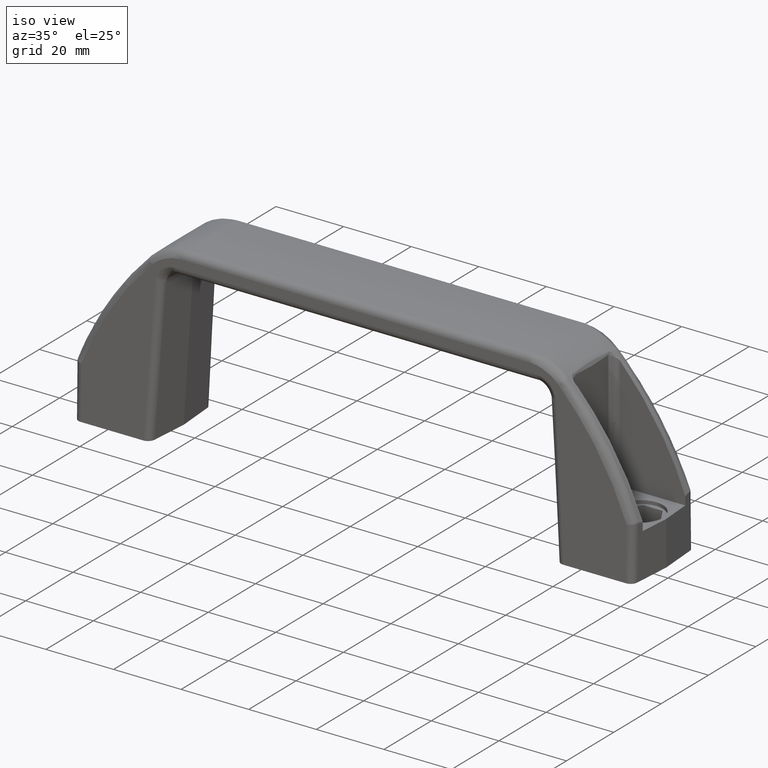
[diagram: clean part render]
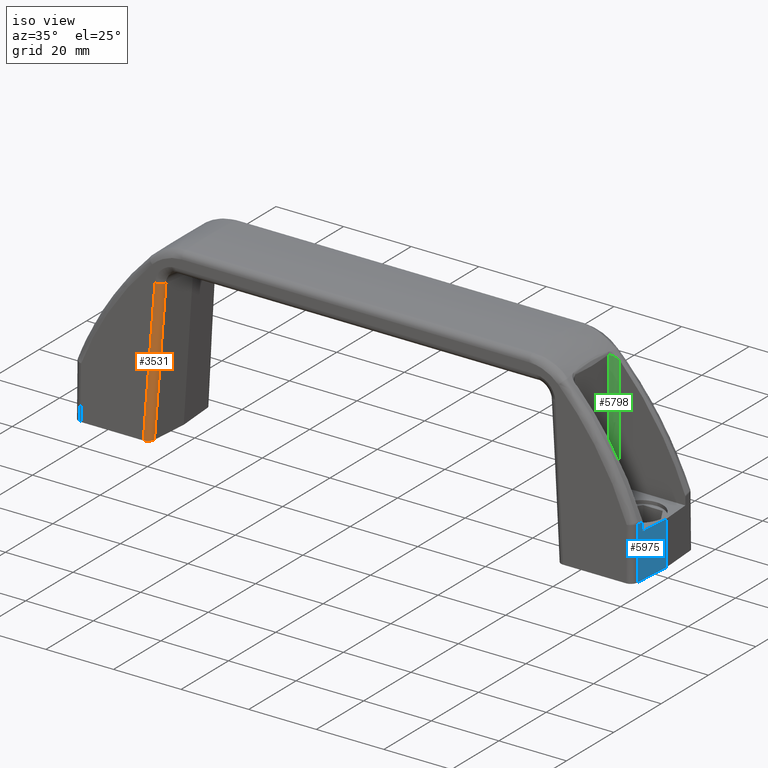
[diagram: same view with three faces highlighted in distinct colors, each labeled with its STEP entity id]
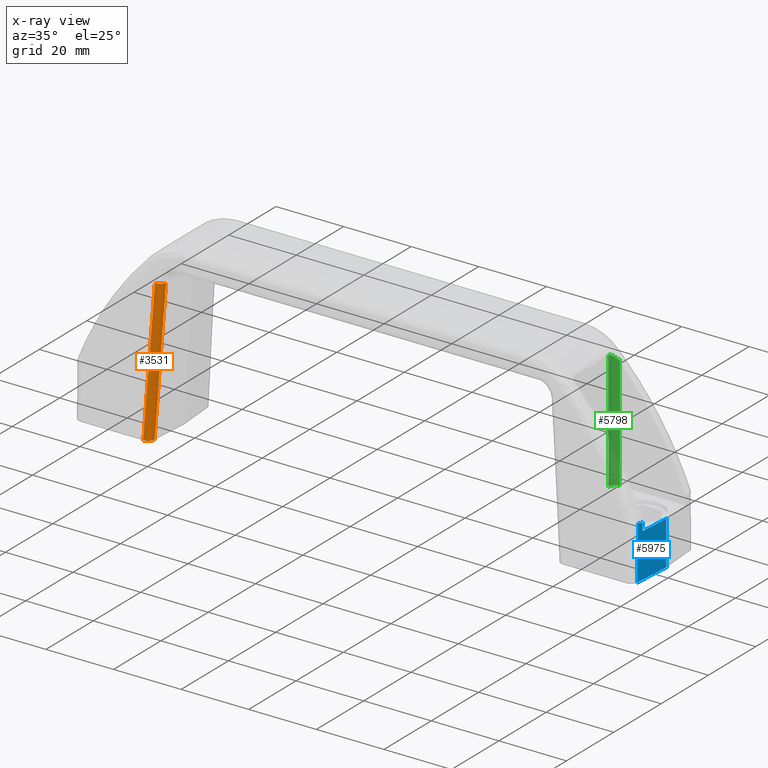
[diagram: x-ray of the same camera — body ghosted, the three highlighted faces saturated]
A machine part, iso view with three faces highlighted in distinct colors.
The next image is the same camera in x-ray (body ghosted, the three faces saturated) — at least one of them is partly hidden behind the body in this view.
Their STEP definitions:

[orange] entity #3531 — the highlighted face is a freeform B-spline surface patch.
#3394=CARTESIAN_POINT('',(16.760145770931299,-12.203539586289100,42.610632133530650));
#3395=VERTEX_POINT('',#3394);
#3396=CARTESIAN_POINT('',(18.749934323990999,-10.357281912817299,42.442060634858542));
#3397=VERTEX_POINT('',#3396);
#3398=CARTESIAN_POINT('',(16.760145770931299,-12.203539586289089,42.610632133530650));
#3399=CARTESIAN_POINT('',(18.610324945346996,-12.205868787984103,42.486019842847661));
#3400=CARTESIAN_POINT('',(18.749934323991042,-10.357281912817310,42.442060634858507));
#3408=(BOUNDED_CURVE()B_SPLINE_CURVE(2,(#3398,#3399,#3400),.UNSPECIFIED.,.F.,.U.)CURVE()GEOMETRIC_REPRESENTATION_ITEM()QUASI_UNIFORM_CURVE()RATIONAL_B_SPLINE_CURVE((1.0,0.733299809384538,1.0))REPRESENTATION_ITEM(''));
#3409=EDGE_CURVE('',#3395,#3397,#3408,.T.);
#3487=CARTESIAN_POINT('',(15.810530271523890,-11.121410714318230,-1.235033430990206));
#3488=CARTESIAN_POINT('',(18.826760613534880,-10.284629492163219,43.532761954300383));
#3489=CARTESIAN_POINT('',(15.712095268766312,-13.118503098395820,-1.191072542789208));
#3490=CARTESIAN_POINT('',(18.728325610777301,-12.281721876240805,43.576722842501376));
#3491=CARTESIAN_POINT('',(13.719047019870290,-13.017353178390890,-1.058681564034945));
#3492=CARTESIAN_POINT('',(16.735277361881280,-12.180571956235870,43.709113821255649));
#3500=(BOUNDED_SURFACE()B_SPLINE_SURFACE(1,2,((#3487,#3489,#3491),(#3488,#3490,#3492)),.UNSPECIFIED.,.F.,.F.,.U.)B_SPLINE_SURFACE_WITH_KNOTS((2,2),(3,3),(0.0,44.877091616425702),(0.0,3.313708498984759),.UNSPECIFIED.)GEOMETRIC_REPRESENTATION_ITEM()RATIONAL_B_SPLINE_SURFACE(((1.0,0.707106781186548,1.0),(1.0,0.707106781186548,1.0)))REPRESENTATION_ITEM('')SURFACE());
#3501=CARTESIAN_POINT('',(15.890400367436349,-11.150591457394199,9.947598E-014));
#3502=VERTEX_POINT('',#3501);
#3503=CARTESIAN_POINT('',(13.889254309171861,-13.0,9.237056E-014));
#3504=VERTEX_POINT('',#3503);
#3505=CARTESIAN_POINT('',(15.890400367436341,-11.150591457394199,9.714451E-014));
#3506=CARTESIAN_POINT('',(15.747829237028363,-13.000000000000002,9.714451E-014));
#3507=CARTESIAN_POINT('',(13.889254309171861,-12.999999999999989,9.714451E-014));
#3515=(BOUNDED_CURVE()B_SPLINE_CURVE(2,(#3505,#3506,#3507),.UNSPECIFIED.,.F.,.U.)CURVE()GEOMETRIC_REPRESENTATION_ITEM()QUASI_UNIFORM_CURVE()RATIONAL_B_SPLINE_CURVE((1.0,0.733299809384546,1.0))REPRESENTATION_ITEM(''));
#3516=EDGE_CURVE('',#3502,#3504,#3515,.T.);
#3517=ORIENTED_EDGE('',*,*,#3516,.F.);
#3518=CARTESIAN_POINT('',(18.749934323990999,-10.357281912817299,42.442060634858542));
#3519=CARTESIAN_POINT('',(15.890400367436349,-11.150591457394199,9.947598E-014));
#3520=QUASI_UNIFORM_CURVE('',1,(#3518,#3519),.UNSPECIFIED.,.F.,.U.);
#3521=EDGE_CURVE('',#3397,#3502,#3520,.T.);
#3522=ORIENTED_EDGE('',*,*,#3521,.F.);
#3523=ORIENTED_EDGE('',*,*,#3409,.F.);
#3524=CARTESIAN_POINT('',(13.889254309171861,-13.0,9.237056E-014));
#3525=CARTESIAN_POINT('',(16.760145770931299,-12.203539586289100,42.610632133530650));
#3526=QUASI_UNIFORM_CURVE('',1,(#3524,#3525),.UNSPECIFIED.,.F.,.U.);
#3527=EDGE_CURVE('',#3504,#3395,#3526,.T.);
#3528=ORIENTED_EDGE('',*,*,#3527,.F.);
#3529=EDGE_LOOP('',(#3517,#3522,#3523,#3528));
#3530=FACE_OUTER_BOUND('',#3529,.T.);
#3531=ADVANCED_FACE('',(#3530),#3500,.T.);

[blue] entity #5975 — the highlighted face is a freeform B-spline surface patch.
#2072=CARTESIAN_POINT('',(158.729626833435990,-10.785277463857820,15.637074237740000));
#2073=VERTEX_POINT('',#2072);
#2098=CARTESIAN_POINT('',(158.725021876438490,-10.849746861825160,15.643287284518699));
#2099=VERTEX_POINT('',#2098);
#2113=CARTESIAN_POINT('',(158.729626833435990,-10.785277463857820,15.637074237740000));
#2114=CARTESIAN_POINT('',(158.728104988807100,-10.806583288662390,15.641063996365030));
#2115=CARTESIAN_POINT('',(158.726570217936110,-10.828070080857440,15.643166374526780));
#2116=CARTESIAN_POINT('',(158.725021876438490,-10.849746861825160,15.643287284518699));
#2117=QUASI_UNIFORM_CURVE('',3,(#2113,#2114,#2115,#2116),.UNSPECIFIED.,.F.,.U.);
#2118=EDGE_CURVE('',#2073,#2099,#2117,.T.);
#2263=CARTESIAN_POINT('',(158.857146621103510,-9.000000436509680,15.300788244985601));
#2264=VERTEX_POINT('',#2263);
#2288=CARTESIAN_POINT('',(158.857146621103510,-9.000000436509680,15.300788244985601));
#2289=CARTESIAN_POINT('',(158.793715385305550,-9.888037737684430,15.469055868629624));
#2290=CARTESIAN_POINT('',(158.729626833436210,-10.785277463857710,15.637074237740141));
#2298=(BOUNDED_CURVE()B_SPLINE_CURVE(2,(#2288,#2289,#2290),.UNSPECIFIED.,.F.,.U.)CURVE()GEOMETRIC_REPRESENTATION_ITEM()QUASI_UNIFORM_CURVE()RATIONAL_B_SPLINE_CURVE((1.0,0.999998089719553,1.0))REPRESENTATION_ITEM(''));
#2299=EDGE_CURVE('',#2264,#2073,#2298,.T.);
#4127=CARTESIAN_POINT('',(158.704136312641000,-11.142144754994700,0.0));
#4128=VERTEX_POINT('',#4127);
#4129=CARTESIAN_POINT('',(158.725021876438490,-10.849746861825160,15.643287284518699));
#4130=CARTESIAN_POINT('',(158.704136312641000,-11.142144754994700,0.0));
#4131=QUASI_UNIFORM_CURVE('',1,(#4129,#4130),.UNSPECIFIED.,.F.,.U.);
#4132=EDGE_CURVE('',#2099,#4128,#4131,.T.);
#5925=CARTESIAN_POINT('',(159.500003795139010,0.0,13.000000617466860));
#5926=VERTEX_POINT('',#5925);
#5932=CARTESIAN_POINT('',(159.500003795139010,0.0,0.0));
#5933=VERTEX_POINT('',#5932);
#5934=CARTESIAN_POINT('',(159.500003795139010,0.0,13.000000617466860));
#5935=CARTESIAN_POINT('',(159.500003795139010,0.0,0.0));
#5936=QUASI_UNIFORM_CURVE('',1,(#5934,#5935),.UNSPECIFIED.,.F.,.U.);
#5937=EDGE_CURVE('',#5926,#5933,#5936,.T.);
#5947=CARTESIAN_POINT('',(159.539757362248390,0.556549939534964,-0.781382169541984));
#5948=CARTESIAN_POINT('',(158.664382653028300,-11.698695989570620,-0.781382169541984));
#5949=CARTESIAN_POINT('',(159.539757362248390,0.556549939534964,16.424669873646351));
#5950=CARTESIAN_POINT('',(158.664382653028300,-11.698695989570620,16.424669873646351));
#5951=B_SPLINE_SURFACE_WITH_KNOTS('',1,1,((#5947,#5949),(#5948,#5950)),.UNSPECIFIED.,.F.,.F.,.U.,(2,2),(2,2),(0.0,12.286469536217510),(0.0,17.206052043188340),.UNSPECIFIED.);
#5952=ORIENTED_EDGE('',*,*,#2299,.T.);
#5953=ORIENTED_EDGE('',*,*,#2118,.T.);
#5954=ORIENTED_EDGE('',*,*,#4132,.T.);
#5955=CARTESIAN_POINT('',(158.704136312641000,-11.142144754994700,0.0));
#5956=CARTESIAN_POINT('',(159.500003795139010,0.0,0.0));
#5957=QUASI_UNIFORM_CURVE('',1,(#5955,#5956),.UNSPECIFIED.,.F.,.U.);
#5958=EDGE_CURVE('',#4128,#5933,#5957,.T.);
#5959=ORIENTED_EDGE('',*,*,#5958,.T.);
#5960=ORIENTED_EDGE('',*,*,#5937,.F.);
#5961=CARTESIAN_POINT('',(158.857146621103510,-9.000000436509680,13.000000617466201));
#5962=VERTEX_POINT('',#5961);
#5963=CARTESIAN_POINT('',(158.857146621103510,-9.000000436509680,13.000000617466201));
#5964=CARTESIAN_POINT('',(159.500003795139010,0.0,13.000000617466860));
#5965=QUASI_UNIFORM_CURVE('',1,(#5963,#5964),.UNSPECIFIED.,.F.,.U.);
#5966=EDGE_CURVE('',#5962,#5926,#5965,.T.);
#5967=ORIENTED_EDGE('',*,*,#5966,.F.);
#5968=CARTESIAN_POINT('',(158.857146621103510,-9.000000436509680,15.300788244985601));
#5969=CARTESIAN_POINT('',(158.857146621103510,-9.000000436509680,13.000000617466201));
#5970=QUASI_UNIFORM_CURVE('',1,(#5968,#5969),.UNSPECIFIED.,.F.,.U.);
#5971=EDGE_CURVE('',#2264,#5962,#5970,.T.);
#5972=ORIENTED_EDGE('',*,*,#5971,.F.);
#5973=EDGE_LOOP('',(#5952,#5953,#5954,#5959,#5960,#5967,#5972));
#5974=FACE_OUTER_BOUND('',#5973,.T.);
#5975=ADVANCED_FACE('',(#5974),#5951,.F.);

[green] entity #5798 — the highlighted face is a freeform B-spline surface patch.
#888=CARTESIAN_POINT('',(137.482387620717990,7.000000432000820,48.245700473842099));
#889=VERTEX_POINT('',#888);
#903=CARTESIAN_POINT('',(139.482387620717990,9.000000432000780,46.602219284650801));
#904=VERTEX_POINT('',#903);
#905=CARTESIAN_POINT('',(139.482387620717990,9.000000432000780,46.602219284650801));
#906=CARTESIAN_POINT('',(139.475776907441510,8.999981483470501,46.605391984103512));
#907=CARTESIAN_POINT('',(139.462535216171890,8.999943528324362,46.611747109028101));
#908=CARTESIAN_POINT('',(139.442691688023300,8.999636940439780,46.621393019487641));
#909=CARTESIAN_POINT('',(139.422826118592300,8.999146942534823,46.631140115710039));
#910=CARTESIAN_POINT('',(139.402943909914000,8.998454856178020,46.640995552102687));
#911=CARTESIAN_POINT('',(139.383046131577600,8.997564910509537,46.650957402669533));
#912=CARTESIAN_POINT('',(139.363135036038610,8.996475192779707,46.661026185720289));
#913=CARTESIAN_POINT('',(139.343212573900190,8.995185468345280,46.671201761876802));
#914=CARTESIAN_POINT('',(139.323280793084900,8.993695075885633,46.681484168556523));
#915=CARTESIAN_POINT('',(139.303341731390990,8.992003494283985,46.691873395713763));
#916=CARTESIAN_POINT('',(139.283397445049700,8.990110190295809,46.702369445980828));
#917=CARTESIAN_POINT('',(139.263450000937810,8.988014659844994,46.712972318688507));
#918=CARTESIAN_POINT('',(139.243501478283010,8.985716417166815,46.723682013899143));
#919=CARTESIAN_POINT('',(139.223553968177500,8.983214998028753,46.734498531681162));
#920=CARTESIAN_POINT('',(139.203609573217390,8.980509959106694,46.745421871871507));
#921=CARTESIAN_POINT('',(139.183670407672510,8.977600878464356,46.756452034732163));
#922=CARTESIAN_POINT('',(139.163738596834410,8.974487355653102,46.767589019813109));
#923=CARTESIAN_POINT('',(139.143816277110010,8.971169011945058,46.778832827936043));
#924=CARTESIAN_POINT('',(139.123905596480000,8.967645490770734,46.790183456689952));
#925=CARTESIAN_POINT('',(139.104008710183510,8.963916456815106,46.801640914606040));
#926=CARTESIAN_POINT('',(139.084127797001200,8.959981600566481,46.813205169746830));
#927=CARTESIAN_POINT('',(139.064264996603100,8.955840622143057,46.824876341670553));
#928=CARTESIAN_POINT('',(139.019298215596310,8.945988695767799,46.851566855936547));
#929=CARTESIAN_POINT('',(138.948980909360810,8.928390837586075,46.894560643946207));
#930=CARTESIAN_POINT('',(138.853926975046590,8.899579937386179,46.955551174911712));
#931=CARTESIAN_POINT('',(138.758257885151210,8.865250692399021,47.019989517205786));
#932=CARTESIAN_POINT('',(138.661402994756490,8.824767220806892,47.088551684379091));
#933=CARTESIAN_POINT('',(138.559656086535600,8.775719533449443,47.164370821603868));
#934=CARTESIAN_POINT('',(138.449778165482290,8.714557832643870,47.250323630887550));
#935=CARTESIAN_POINT('',(138.357906675818210,8.655037756980935,47.326238448274019));
#936=CARTESIAN_POINT('',(138.286686905698190,8.603601108969587,47.387573198141702));
#937=CARTESIAN_POINT('',(138.238434333367000,8.566466300480961,47.430125672698352));
#938=CARTESIAN_POINT('',(138.191469398903910,8.527991374382891,47.472683480291437));
#939=CARTESIAN_POINT('',(138.145755656118010,8.488166215673983,47.515086306877222));
#940=CARTESIAN_POINT('',(138.101265200864990,8.446972580365975,47.557175262476257));
#941=CARTESIAN_POINT('',(138.049193577018400,8.395739339173652,47.607599568810677));
#942=CARTESIAN_POINT('',(137.993618985749690,8.336551534238028,47.663051778568601));
#943=CARTESIAN_POINT('',(137.933535473838990,8.266386641638707,47.724824931109588));
#944=CARTESIAN_POINT('',(137.878374436679990,8.195807783157438,47.782913540523573));
#945=CARTESIAN_POINT('',(137.805478578081900,8.093151230327907,47.861680950439187));
#946=CARTESIAN_POINT('',(137.724915460020810,7.960865323833317,47.952046152389862));
#947=CARTESIAN_POINT('',(137.640350353386510,7.786866308049472,48.051288656409803));
#948=CARTESIAN_POINT('',(137.572791318573910,7.605599355910118,48.132842479688492));
#949=CARTESIAN_POINT('',(137.529859456145400,7.442110192706671,48.186142220661559));
#950=CARTESIAN_POINT('',(137.505634451229300,7.309768589189872,48.216470861865908));
#951=CARTESIAN_POINT('',(137.495461755054410,7.231794931103463,48.229285313224928));
#952=CARTESIAN_POINT('',(137.490260268057200,7.178107038491828,48.235825289016283));
#953=CARTESIAN_POINT('',(137.487835877043690,7.148518689304830,48.238869912628523));
#954=CARTESIAN_POINT('',(137.485850733680310,7.118883165399327,48.241360448463013));
#955=CARTESIAN_POINT('',(137.484302929138100,7.089206476412222,48.243300566476627));
#956=CARTESIAN_POINT('',(137.483204301529900,7.059495280788898,48.244676756560132));
#957=CARTESIAN_POINT('',(137.482515439450910,7.029756097007931,48.245539357878172));
#958=CARTESIAN_POINT('',(137.482430229115100,7.009919488153966,48.245646765902009));
#959=CARTESIAN_POINT('',(137.482387620717990,7.000000432000820,48.245700473842099));
#960=B_SPLINE_CURVE_WITH_KNOTS('',3,(#905,#906,#907,#908,#909,#910,#911,#912,#913,#914,#915,#916,#917,#918,#919,#920,#921,#922,#923,#924,#925,#926,#927,#928,#929,#930,#931,#932,#933,#934,#935,#936,#937,#938,#939,#940,#941,#942,#943,#944,#945,#946,#947,#948,#949,#950,#951,#952,#953,#954,#955,#956,#957,#958,#959),.UNSPECIFIED.,.F.,.U.,(4,1,1,1,1,1,1,1,1,1,1,1,1,1,1,1,1,1,1,1,1,1,1,1,1,1,1,1,1,1,1,1,1,1,1,1,1,1,1,1,1,1,1,1,1,1,1,1,1,1,1,1,4),(0.0,0.006133135643360,0.012285072019855,0.018455902387725,0.024645719203152,0.030854614032527,0.037082677607463,0.043329999845754,0.049596669814892,0.055882775770682,0.062188405145603,0.068513644569803,0.074858579859129,0.081223296047541,0.087607877363743,0.094012407275269,0.100436968438134,0.106881642771726,0.113346511408047,0.119831654728734,0.126337152359982,0.132863083198613,0.139409525383107,0.170844010836731,0.203327589819536,0.236867431470004,0.271470047713089,0.308163332573644,0.350612136213549,0.398818527607924,0.419514713570549,0.440223100754744,0.460943703864637,0.481523132739663,0.502099324640063,0.522672459958940,0.555759756874232,0.584309732665334,0.615601374777527,0.645028608550888,0.708505581628528,0.765324371275809,0.826595981697649,0.883626134098560,0.913058505665182,0.941852005307421,0.950183714073311,0.958502383872803,0.966810858878760,0.975111993743970,0.983408650697111,0.991703696604424,1.000000000000000),.UNSPECIFIED.);
#961=EDGE_CURVE('',#904,#889,#960,.T.);
#5754=CARTESIAN_POINT('',(137.483072970766900,6.947646535385071,12.118858121056800));
#5755=CARTESIAN_POINT('',(137.483072970766900,6.947646535385071,49.148871532661737));
#5756=CARTESIAN_POINT('',(137.425938718325990,9.129515609189060,12.118858121056801));
#5757=CARTESIAN_POINT('',(137.425938718325990,9.129515609189060,49.148871532661730));
#5758=CARTESIAN_POINT('',(139.604484699787690,8.996270028844563,12.118858121056800));
#5759=CARTESIAN_POINT('',(139.604484699787690,8.996270028844563,49.148871532661737));
#5767=(BOUNDED_SURFACE()B_SPLINE_SURFACE(1,2,((#5754,#5756,#5758),(#5755,#5757,#5759)),.UNSPECIFIED.,.F.,.F.,.U.)B_SPLINE_SURFACE_WITH_KNOTS((2,2),(3,3),(0.0,37.030013411604941),(0.0,3.520084247134647),.UNSPECIFIED.)GEOMETRIC_REPRESENTATION_ITEM()RATIONAL_B_SPLINE_SURFACE(((1.0,0.675590207615660,1.0),(1.0,0.675590207615660,1.0)))REPRESENTATION_ITEM('')SURFACE());
#5768=CARTESIAN_POINT('',(139.482387620717990,9.000000432000819,13.000000617466201));
#5769=VERTEX_POINT('',#5768);
#5770=CARTESIAN_POINT('',(139.482387620717990,9.000000432000780,46.602219284650801));
#5771=CARTESIAN_POINT('',(139.482387620717990,9.000000432000819,13.000000617466201));
#5772=QUASI_UNIFORM_CURVE('',1,(#5770,#5771),.UNSPECIFIED.,.F.,.U.);
#5773=EDGE_CURVE('',#904,#5769,#5772,.T.);
#5774=ORIENTED_EDGE('',*,*,#5773,.F.);
#5775=ORIENTED_EDGE('',*,*,#961,.T.);
#5776=CARTESIAN_POINT('',(137.482387620717990,7.000000432000820,13.000000617466201));
#5777=VERTEX_POINT('',#5776);
#5778=CARTESIAN_POINT('',(137.482387620717990,7.000000432000820,13.000000617466201));
#5779=CARTESIAN_POINT('',(137.482387620717990,7.000000432000820,48.245700473842099));
#5780=QUASI_UNIFORM_CURVE('',1,(#5778,#5779),.UNSPECIFIED.,.F.,.U.);
#5781=EDGE_CURVE('',#5777,#889,#5780,.T.);
#5782=ORIENTED_EDGE('',*,*,#5781,.F.);
#5783=CARTESIAN_POINT('',(139.482387620717990,9.000000432000819,13.000000617466201));
#5784=CARTESIAN_POINT('',(137.482387620718010,9.000000432000819,13.000000617466862));
#5785=CARTESIAN_POINT('',(137.482387620717990,7.000000432000820,13.000000617466201));
#5793=(BOUNDED_CURVE()B_SPLINE_CURVE(2,(#5783,#5784,#5785),.UNSPECIFIED.,.F.,.U.)CURVE()GEOMETRIC_REPRESENTATION_ITEM()QUASI_UNIFORM_CURVE()RATIONAL_B_SPLINE_CURVE((1.0,0.707106781186548,1.0))REPRESENTATION_ITEM(''));
#5794=EDGE_CURVE('',#5769,#5777,#5793,.T.);
#5795=ORIENTED_EDGE('',*,*,#5794,.F.);
#5796=EDGE_LOOP('',(#5774,#5775,#5782,#5795));
#5797=FACE_OUTER_BOUND('',#5796,.T.);
#5798=ADVANCED_FACE('',(#5797),#5767,.F.);